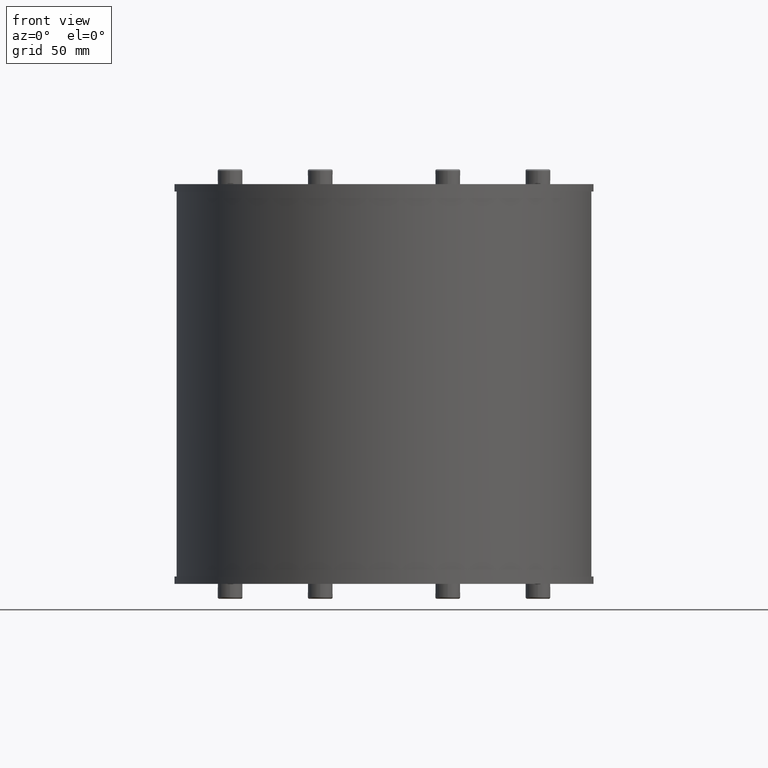
[diagram: clean part render]
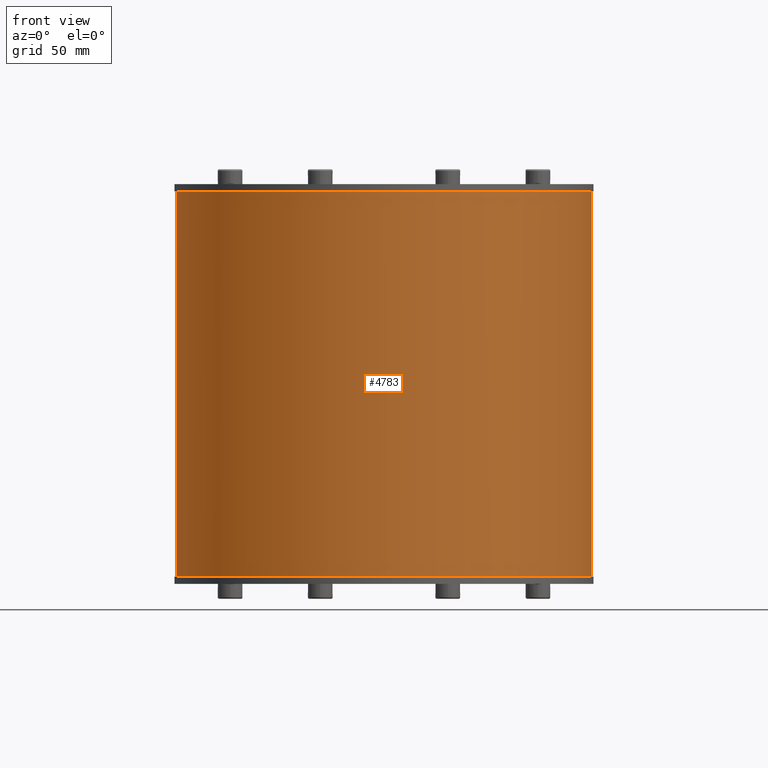
[diagram: same view with one face highlighted and labeled with its STEP entity id]
A machine part, front view. The second image highlights one B-rep face of the part: STEP entity #4783.
In plain terms, the highlighted cylindrical surface (partial cylindrical patch) has radius 84 mm, axis along (0, 0, -1).
Its self-contained STEP definition (entity closure, byte-faithful):
#4742=CARTESIAN_POINT('',(0.0,0.0,-78.0));
#4743=DIRECTION('',(0.0,0.0,1.0));
#4744=DIRECTION('',(1.0,0.0,0.0));
#4745=AXIS2_PLACEMENT_3D('',#4742,#4743,#4744);
#4746=CYLINDRICAL_SURFACE('',#4745,84.0);
#4747=CARTESIAN_POINT('',(84.0,0.0,-78.0));
#4748=VERTEX_POINT('',#4747);
#4749=CARTESIAN_POINT('',(84.0,0.0,78.0));
#4750=VERTEX_POINT('',#4749);
#4751=CARTESIAN_POINT('',(84.0,0.0,-78.0));
#4752=DIRECTION('',(0.0,0.0,1.0));
#4753=VECTOR('',#4752,156.0);
#4754=LINE('',#4751,#4753);
#4755=EDGE_CURVE('',#4748,#4750,#4754,.T.);
#4756=ORIENTED_EDGE('',*,*,#4755,.F.);
#4757=CARTESIAN_POINT('',(-84.0,1.028669E-014,-78.0));
#4758=VERTEX_POINT('',#4757);
#4759=CARTESIAN_POINT('',(0.0,0.0,-78.0));
#4760=DIRECTION('',(0.0,0.0,1.0));
#4761=DIRECTION('',(1.0,0.0,0.0));
#4762=AXIS2_PLACEMENT_3D('',#4759,#4760,#4761);
#4763=CIRCLE('',#4762,84.0);
#4764=EDGE_CURVE('',#4748,#4758,#4763,.T.);
#4765=ORIENTED_EDGE('',*,*,#4764,.T.);
#4766=CARTESIAN_POINT('',(-84.0,1.028669E-014,78.0));
#4767=VERTEX_POINT('',#4766);
#4768=CARTESIAN_POINT('',(-84.0,1.028669E-014,78.0));
#4769=DIRECTION('',(0.0,0.0,-1.0));
#4770=VECTOR('',#4769,156.0);
#4771=LINE('',#4768,#4770);
#4772=EDGE_CURVE('',#4767,#4758,#4771,.T.);
#4773=ORIENTED_EDGE('',*,*,#4772,.F.);
#4774=CARTESIAN_POINT('',(0.0,0.0,78.0));
#4775=DIRECTION('',(0.0,0.0,-1.0));
#4776=DIRECTION('',(1.0,0.0,0.0));
#4777=AXIS2_PLACEMENT_3D('',#4774,#4775,#4776);
#4778=CIRCLE('',#4777,84.0);
#4779=EDGE_CURVE('',#4767,#4750,#4778,.T.);
#4780=ORIENTED_EDGE('',*,*,#4779,.T.);
#4781=EDGE_LOOP('',(#4756,#4765,#4773,#4780));
#4782=FACE_OUTER_BOUND('',#4781,.T.);
#4783=ADVANCED_FACE('',(#4782),#4746,.T.);